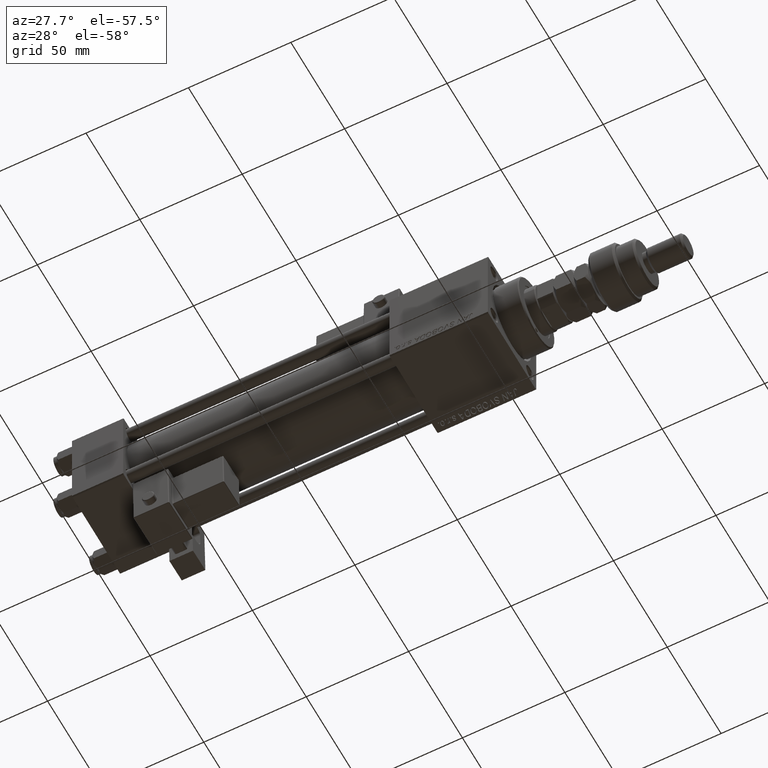
[diagram: clean part render]
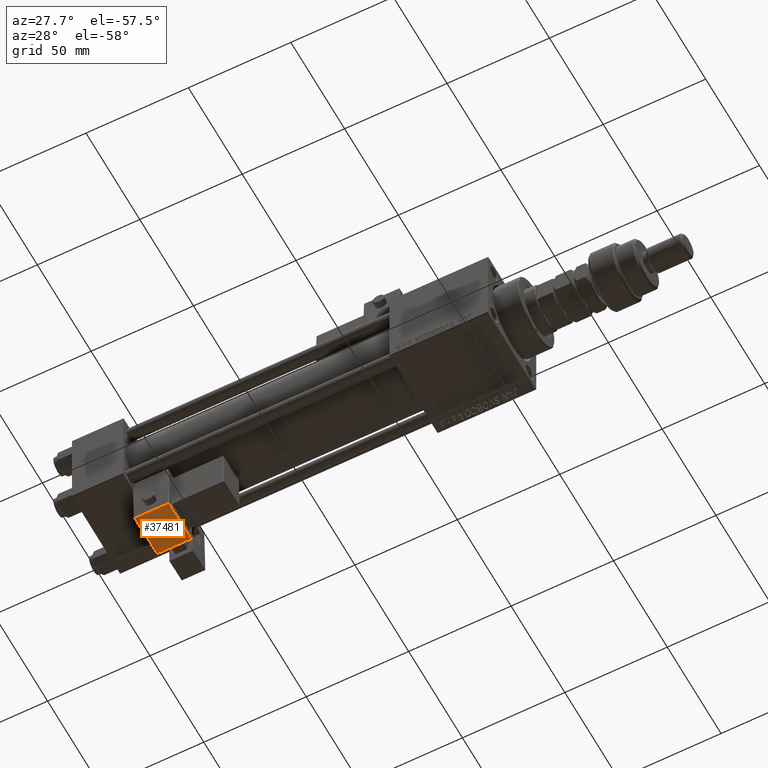
[diagram: same view with one face highlighted and labeled with its STEP entity id]
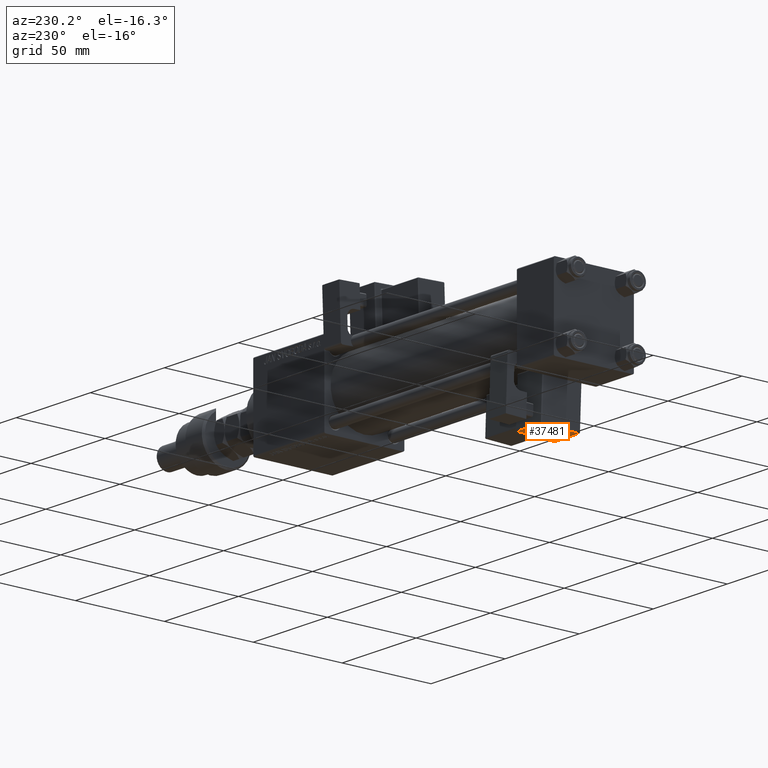
[diagram: same view with one face highlighted and labeled with its STEP entity id]
A machine part, auxiliary view. The second image highlights one B-rep face of the part: STEP entity #37481.
A second angle (auxiliary view) of the same face is appended — the face is thin or edge-on in the first view.
In plain terms, the highlighted planar face has unit normal (0, -0.0353, 0.9994).
Its self-contained STEP definition (entity closure, byte-faithful):
#21 = CARTESIAN_POINT ( 'NONE',  ( 8.750000000000003553, -33.75000000000000000, -1.000000000000000222 ) ) ;
#600 = ORIENTED_EDGE ( 'NONE', *, *, #26654, .T. ) ;
#1855 = EDGE_CURVE ( 'NONE', #9808, #10105, #3211, .T. ) ;
#3211 = LINE ( 'NONE', #40751, #15671 ) ;
#3374 = DIRECTION ( 'NONE',  ( 1.000000000000000000, -0.000000000000000000, 0.000000000000000000 ) ) ;
#3654 = CARTESIAN_POINT ( 'NONE',  ( 8.750000000000003553, -12.25000000000000000, -1.000000000000000222 ) ) ;
#4505 = DIRECTION ( 'NONE',  ( 0.000000000000000000, 0.000000000000000000, 1.000000000000000000 ) ) ;
#4667 = EDGE_CURVE ( 'NONE', #41613, #9808, #54932, .T. ) ;
#5957 = DIRECTION ( 'NONE',  ( -0.000000000000000000, 1.000000000000000000, 0.000000000000000000 ) ) ;
#8692 = ORIENTED_EDGE ( 'NONE', *, *, #41597, .T. ) ;
#8981 = DIRECTION ( 'NONE',  ( 1.000000000000000000, 0.000000000000000000, -0.000000000000000000 ) ) ;
#9146 = AXIS2_PLACEMENT_3D ( 'NONE', #21, #4505, #8981 ) ;
#9808 = VERTEX_POINT ( 'NONE', #49775 ) ;
#10105 = VERTEX_POINT ( 'NONE', #32291 ) ;
#10918 = DIRECTION ( 'NONE',  ( -1.000000000000000000, -0.000000000000000000, 0.000000000000000000 ) ) ;
#15671 = VECTOR ( 'NONE', #32086, 1000.000000000000000 ) ;
#20068 = VECTOR ( 'NONE', #10918, 1000.000000000000000 ) ;
#22849 = ORIENTED_EDGE ( 'NONE', *, *, #4667, .T. ) ;
#23271 = CARTESIAN_POINT ( 'NONE',  ( -8.250000000000003553, -12.25000000000000000, -1.000000000000000222 ) ) ;
#23538 = LINE ( 'NONE', #48758, #20068 ) ;
#25519 = FACE_OUTER_BOUND ( 'NONE', #31522, .T. ) ;
#26437 = VERTEX_POINT ( 'NONE', #35089 ) ;
#26654 = EDGE_CURVE ( 'NONE', #26437, #41613, #52751, .T. ) ;
#31522 = EDGE_LOOP ( 'NONE', ( #22849, #48162, #8692, #600 ) ) ;
#32086 = DIRECTION ( 'NONE',  ( -0.000000000000000000, -1.000000000000000000, -0.000000000000000000 ) ) ;
#32291 = CARTESIAN_POINT ( 'NONE',  ( 8.250000000000003553, -33.25000000000000000, -1.000000000000000222 ) ) ;
#34185 = PLANE ( 'NONE',  #9146 ) ;
#35089 = CARTESIAN_POINT ( 'NONE',  ( -8.250000000000003553, -33.25000000000000000, -1.000000000000000222 ) ) ;
#37481 = ADVANCED_FACE ( 'NONE', ( #25519 ), #34185, .F. ) ;
#40751 = CARTESIAN_POINT ( 'NONE',  ( 8.250000000000003553, -33.75000000000000000, -1.000000000000000222 ) ) ;
#41597 = EDGE_CURVE ( 'NONE', #10105, #26437, #23538, .T. ) ;
#41613 = VERTEX_POINT ( 'NONE', #23271 ) ;
#42636 = VECTOR ( 'NONE', #3374, 1000.000000000000000 ) ;
#44344 = CARTESIAN_POINT ( 'NONE',  ( -8.250000000000003553, -33.75000000000000000, -1.000000000000000222 ) ) ;
#48162 = ORIENTED_EDGE ( 'NONE', *, *, #1855, .T. ) ;
#48758 = CARTESIAN_POINT ( 'NONE',  ( 8.750000000000003553, -33.25000000000000000, -1.000000000000000222 ) ) ;
#49775 = CARTESIAN_POINT ( 'NONE',  ( 8.250000000000003553, -12.25000000000000000, -1.000000000000000222 ) ) ;
#50205 = VECTOR ( 'NONE', #5957, 1000.000000000000000 ) ;
#52751 = LINE ( 'NONE', #44344, #50205 ) ;
#54932 = LINE ( 'NONE', #3654, #42636 ) ;